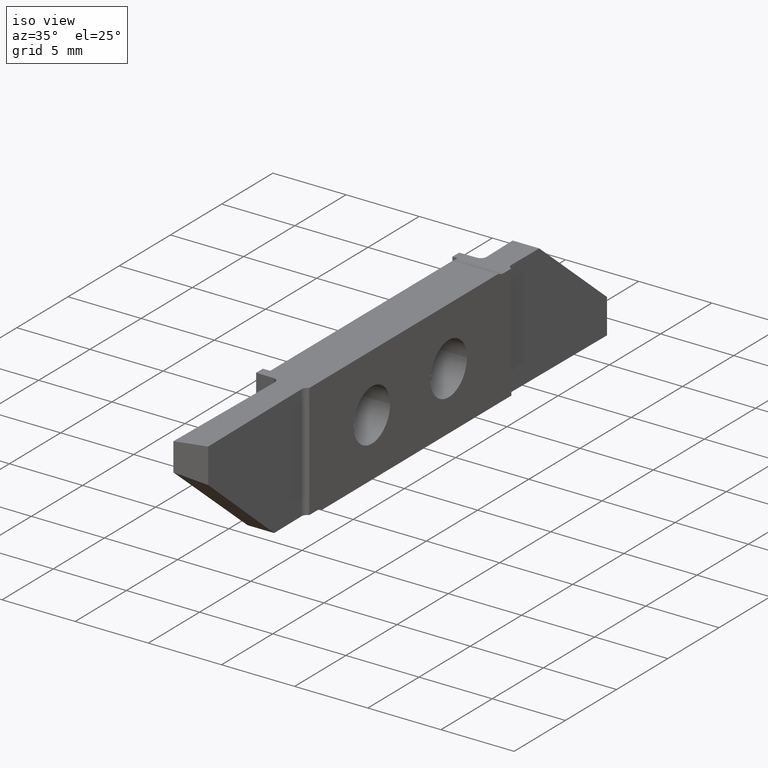
[diagram: clean part render]
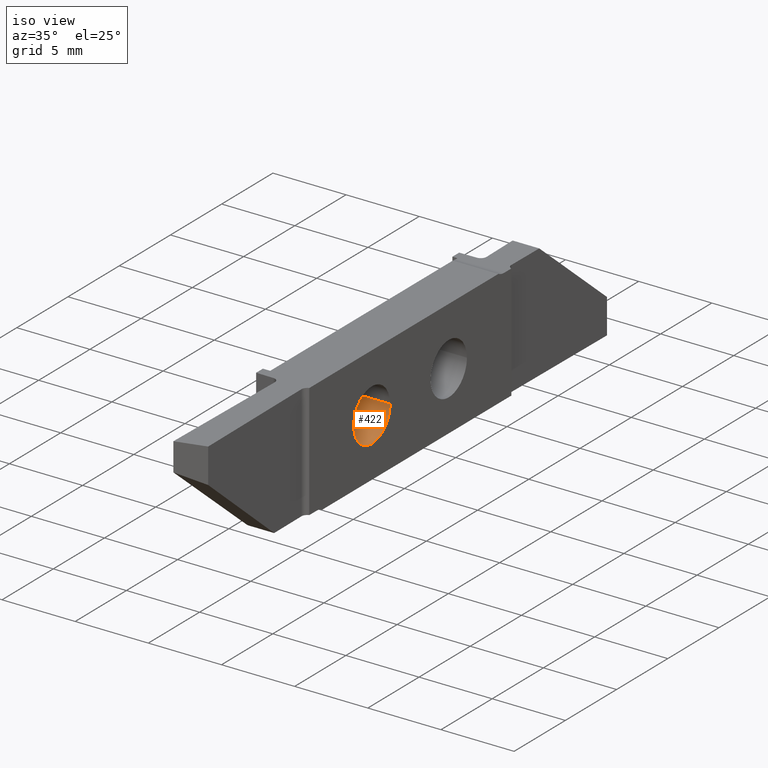
[diagram: same view with one face highlighted and labeled with its STEP entity id]
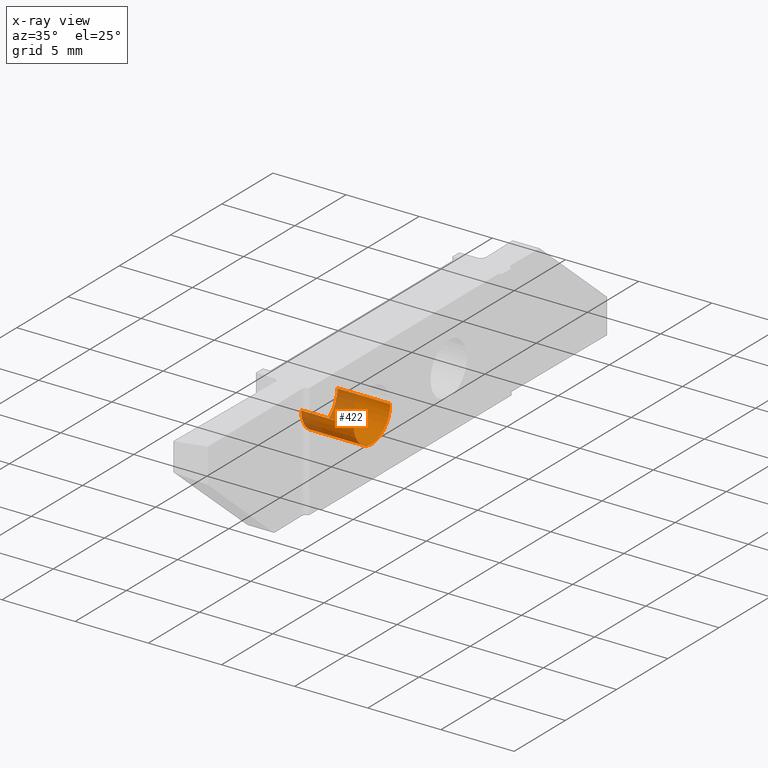
[diagram: x-ray of the same camera — body ghosted, the highlighted face saturated]
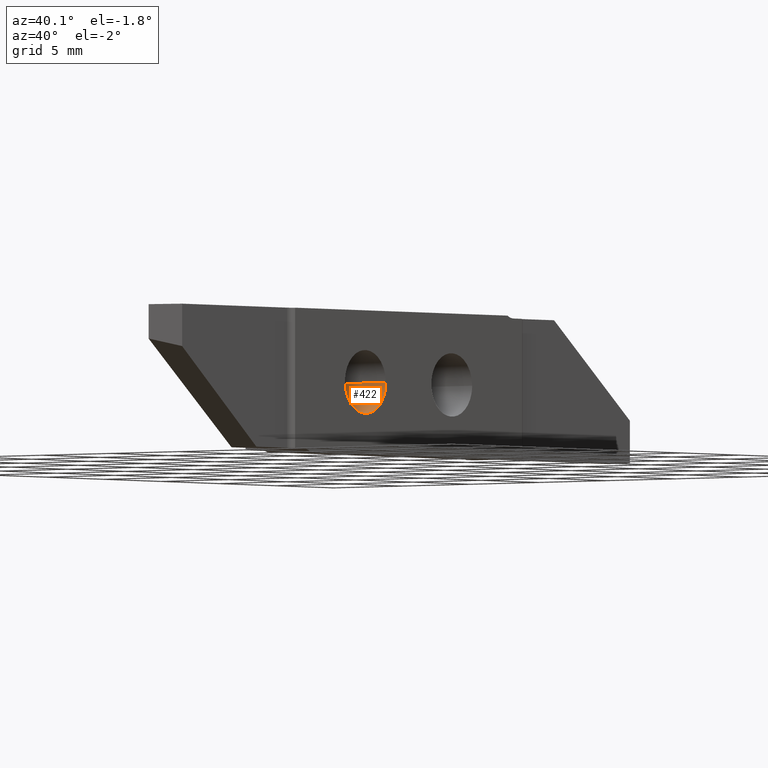
[diagram: same view with one face highlighted and labeled with its STEP entity id]
A machine part, iso view. The second image highlights one B-rep face of the part: STEP entity #422.
The next image is the same camera in x-ray: the body ghosted, the highlighted face saturated — about 31% of this face is hidden behind the body in this view.
A second angle (auxiliary view) of the same face is appended — the face is thin or edge-on in the first view.
In plain terms, the highlighted cylindrical surface (edge-blend (fillet) strip) has radius 1.775 mm, axis along (1, 0, -0).
Its self-contained STEP definition (entity closure, byte-faithful):
#290=CARTESIAN_POINT('',(-3.183503075E-07,5.6,-3.));
#291=VERTEX_POINT('',#290);
#292=CARTESIAN_POINT('',(-3.183503075E-07,2.05,-3.));
#293=VERTEX_POINT('',#292);
#304=CARTESIAN_POINT('',(-3.183503075E-07,2.05,-3.));
#305=CARTESIAN_POINT('',(-5.067075725E-07,2.05,-4.775));
#306=CARTESIAN_POINT('',(-5.067075725E-07,3.825,-4.775));
#307=CARTESIAN_POINT('',(-5.067075725E-07,5.6,-4.775));
#308=CARTESIAN_POINT('',(-3.183503075E-07,5.6,-3.));
#309=(BOUNDED_CURVE()B_SPLINE_CURVE(2,(#304,#305,#306,#307,#308),.UNSPECIFIED.,.F.,.F.)B_SPLINE_CURVE_WITH_KNOTS((3,2,3),(0.,1.570796327,3.141592654),.UNSPECIFIED.)CURVE()GEOMETRIC_REPRESENTATION_ITEM()RATIONAL_B_SPLINE_CURVE((1.,0.7071067812,1.,0.7071067812
,1.))REPRESENTATION_ITEM(''));
#310=EDGE_CURVE('',#293,#291,#309,.T.);
#358=CARTESIAN_POINT('',(-0.3600003184,3.825,-2.999999962));
#359=DIRECTION('',(1.,0.,-1.061167691E-07));
#360=DIRECTION('',(1.06116769E-07,3.552713679E-15,1.));
#361=AXIS2_PLACEMENT_3D('',#358,#359,#360);
#362=CYLINDRICAL_SURFACE('',#361,1.775);
#363=CARTESIAN_POINT('',(3.599999682,2.05,-3.000000382));
#364=CARTESIAN_POINT('',(3.599999493,2.05,-4.775000382));
#365=CARTESIAN_POINT('',(3.599999493,3.825,-4.775000382));
#366=CARTESIAN_POINT('',(3.599999493,5.6,-4.775000382));
#367=CARTESIAN_POINT('',(3.599999682,5.6,-3.000000382));
#368=(BOUNDED_CURVE()B_SPLINE_CURVE(2,(#363,#364,#365,#366,#367),.UNSPECIFIED.,.F.,.F.)B_SPLINE_CURVE_WITH_KNOTS((3,2,3),(0.,1.570796327,3.141592654),.UNSPECIFIED.)CURVE()GEOMETRIC_REPRESENTATION_ITEM()RATIONAL_B_SPLINE_CURVE((1.,0.7071067812,1.,0.7071067812
,1.))REPRESENTATION_ITEM(''));
#369=CARTESIAN_POINT('',(3.599999682,2.05,-3.000000382));
#370=VERTEX_POINT('',#369);
#371=CARTESIAN_POINT('',(3.599999682,5.6,-3.000000382));
#372=VERTEX_POINT('',#371);
#373=EDGE_CURVE('',#370,#372,#368,.T.);
#374=ORIENTED_EDGE('Edge 315',*,*,#373,.T.);
#383=CARTESIAN_POINT('',(-3.183503075E-07,2.05,-3.));
#384=DIRECTION('',(1.,0.,-1.061167692E-07));
#385=VECTOR('',#384,3.6);
#386=LINE('',#383,#385);
#387=EDGE_CURVE('',#293,#370,#386,.T.);
#388=ORIENTED_EDGE('Edge 42',*,*,#387,.T.);
#397=ORIENTED_EDGE('Edge 147',*,*,#310,.F.);
#406=CARTESIAN_POINT('',(-3.183503075E-07,5.6,-3.));
#407=DIRECTION('',(1.,0.,-1.061167692E-07));
#408=VECTOR('',#407,3.6);
#409=LINE('',#406,#408);
#410=EDGE_CURVE('',#291,#372,#409,.T.);
#411=ORIENTED_EDGE('Edge 52',*,*,#410,.F.);
#420=EDGE_LOOP('',(#411,#397,#388,#374));
#421=FACE_OUTER_BOUND('Loop 593',#420,.T.);
#422=ADVANCED_FACE('Face 594',(#421),#362,.F.);